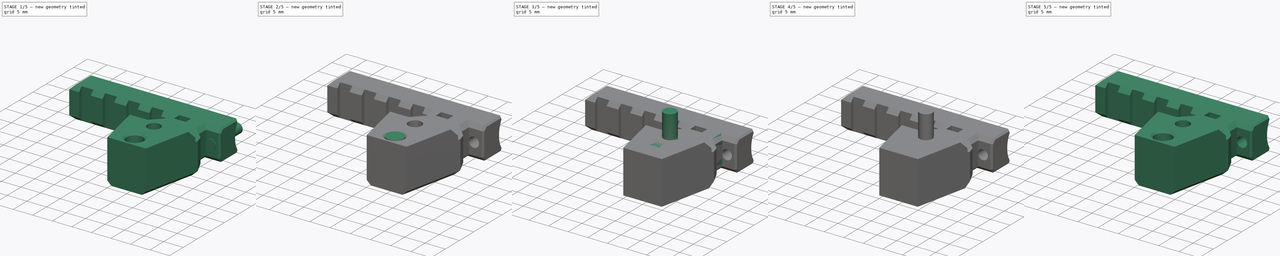
[diagram: build sequence overview — one tinted view per stage of 5, left to right]
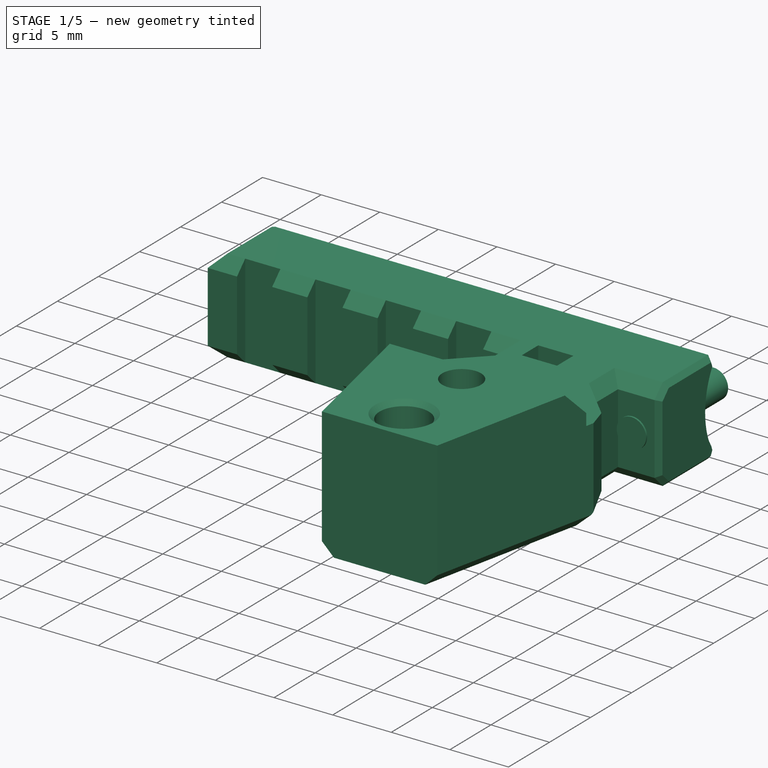
[diagram: stage 1 of 5 — iso view after this stage's code; geometry added in this stage tinted green]
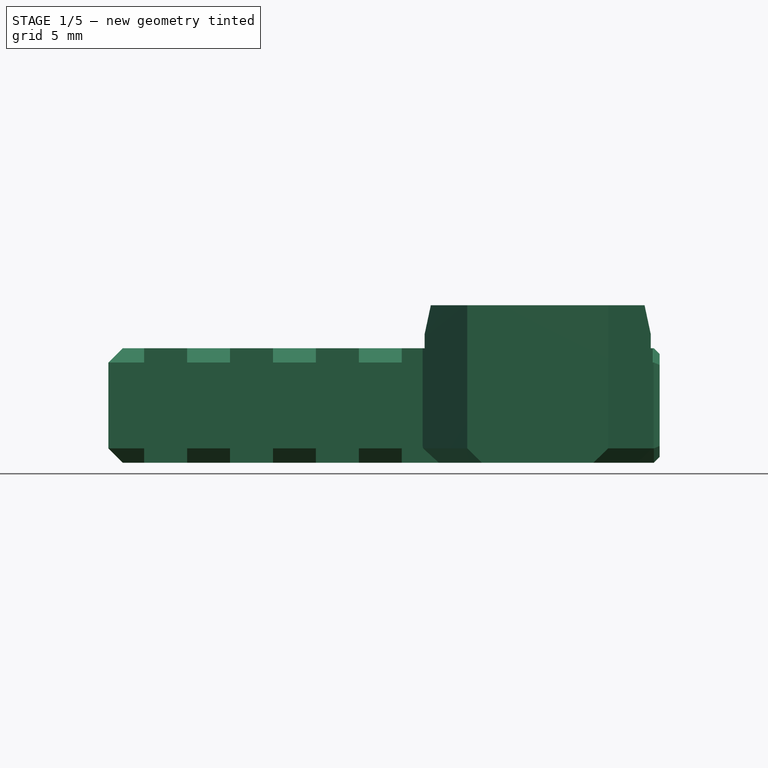
[diagram: stage 1 of 5 — front view after this stage's code; geometry added in this stage tinted green]
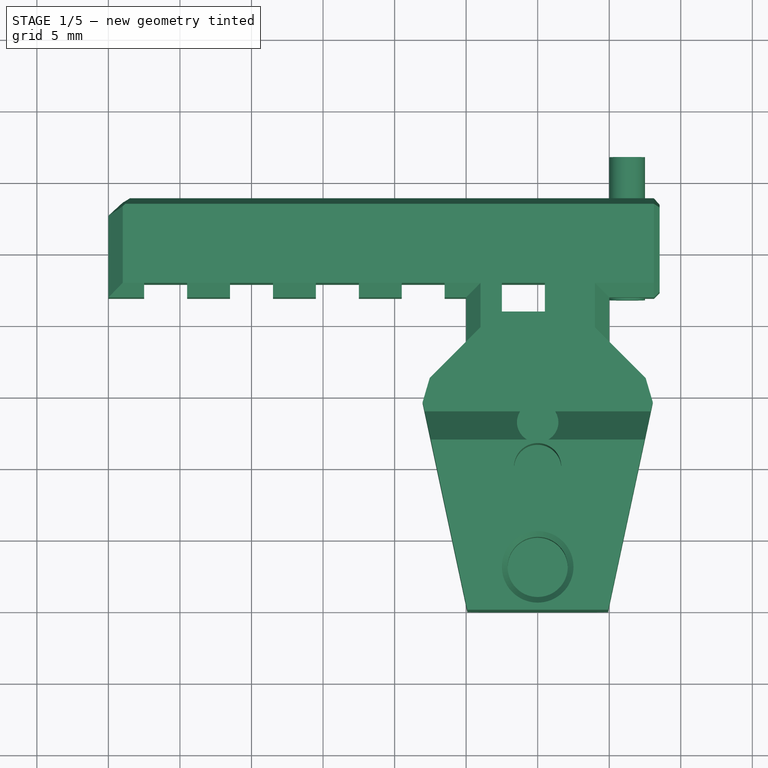
[diagram: stage 1 of 5 — top view after this stage's code; geometry added in this stage tinted green]
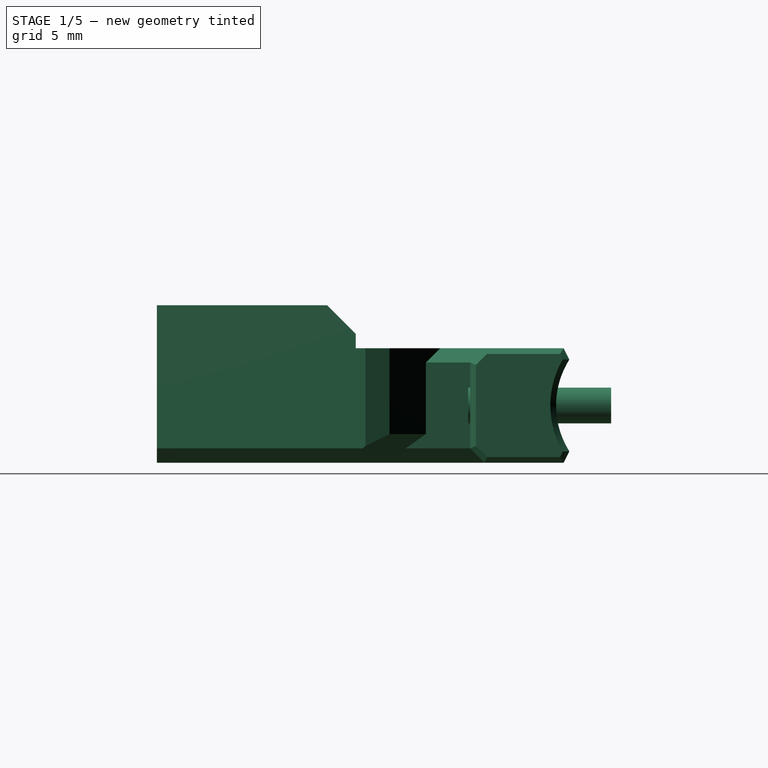
[diagram: stage 1 of 5 — right view after this stage's code; geometry added in this stage tinted green]
FCSTD DOCUMENT  (FreeCAD 0.19R24291 (Git))
Label: extruder-cable-guide
License: Other
LicenseURL: GPL3
objects: Part::Feature×8, PartDesign::Pad×8, Part::Cylinder×5, Part::Cut×5, Part::Chamfer×5, Sketcher::SketchObject×2, Part::Refine×2, PartDesign::FeatureBase×1, PartDesign::Body×1, Part::Extrusion×1, Part::MultiFuse×1
note: 47 computed .brp shape members not serialized (recipe doc carries the construction recipe); baked Part::Feature solids carry a one-line shape summary decoded from their .brp

FEATURE [Part::Feature] Chamfer001002002_cs
  Placement = pos=(26.5,0,0) rot=(0,0,1;0rad)
  shape: bbox 0.0002001 x 6.926 x 8 mm, 0 faces, 0 solids (baked)
FEATURE [Part::Feature] Defeatured002
  shape: bbox 38.38 x 29.43 x 11.83 mm, 76 faces (baked)
FEATURE [Part::Extrusion] Extrude
  Base = -> Chamfer001002002_cs
  Dir = (1,0,0)
  DirMode = 2
  FaceMakerClass = Part::FaceMakerBullseye
  LengthFwd = 5
  LengthRev = 0
  Solid = true
  Symmetric = false
FEATURE [Part::Cylinder] Cylinder003
  Angle = 360
  AttacherType = Attacher::AttachEngine3D
  Height = 10
  Placement = pos=(6.25,21.75,4) rot=(1,0,0;4.71239rad)
  Radius = 1.25
FEATURE [Part::Chamfer] Chamfer001002003
  Base = -> Extrude
  Edges = 8 edges r=0.4: [Edge4,Edge7,Edge10,Edge13,Edge16,Edge19,Edge22,Edge24]
FEATURE [Part::Feature] Defeatured003
  shape: bbox 38.38 x 29.43 x 11.83 mm, 74 faces (baked)
FEATURE [Part::Feature] Defeatured004
  shape: bbox 38.38 x 29.43 x 11.83 mm, 73 faces (baked)
FEATURE [Part::MultiFuse] Fusion
  Shapes = -> [Chamfer001002003,Defeatured004]
FEATURE [Part::Cylinder] Cylinder004
  Angle = 360
  AttacherType = Attacher::AttachEngine3D
  Height = 4
  Placement = pos=(0,10,0) rot=(0,0,1;0rad)
  Radius = 3.2
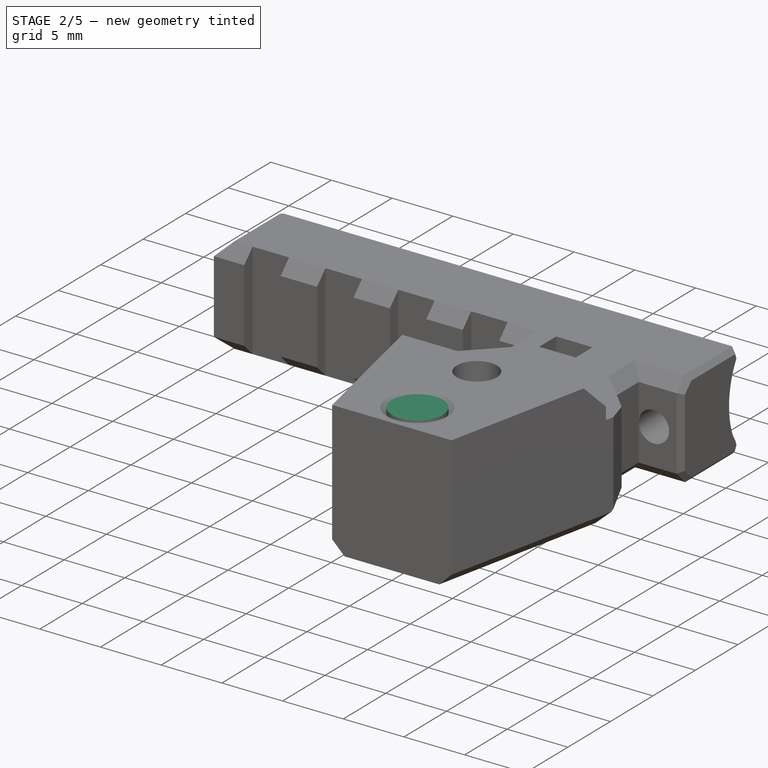
[diagram: stage 2 of 5 — iso view after this stage's code; geometry added in this stage tinted green]
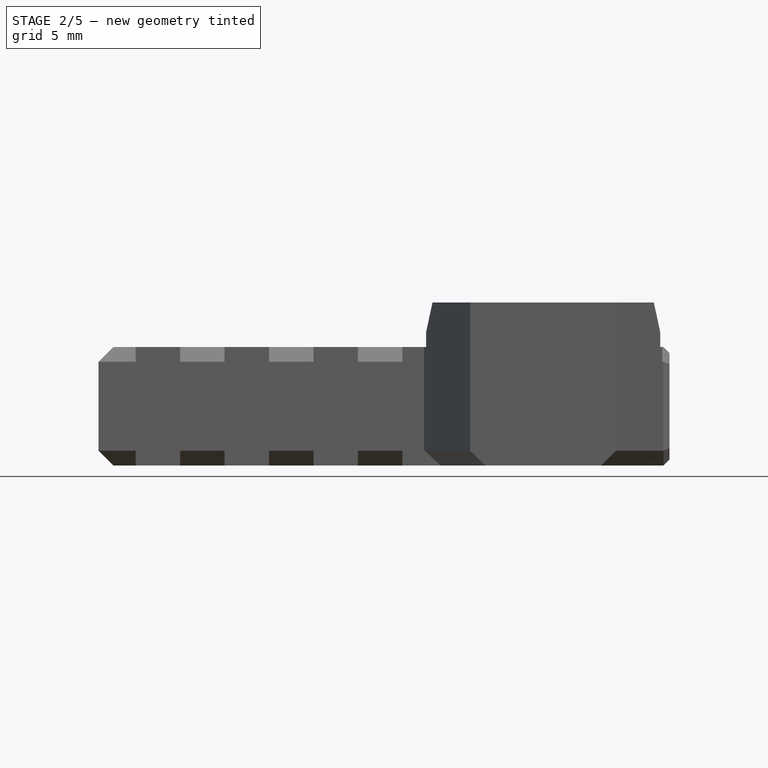
[diagram: stage 2 of 5 — front view after this stage's code; geometry added in this stage tinted green]
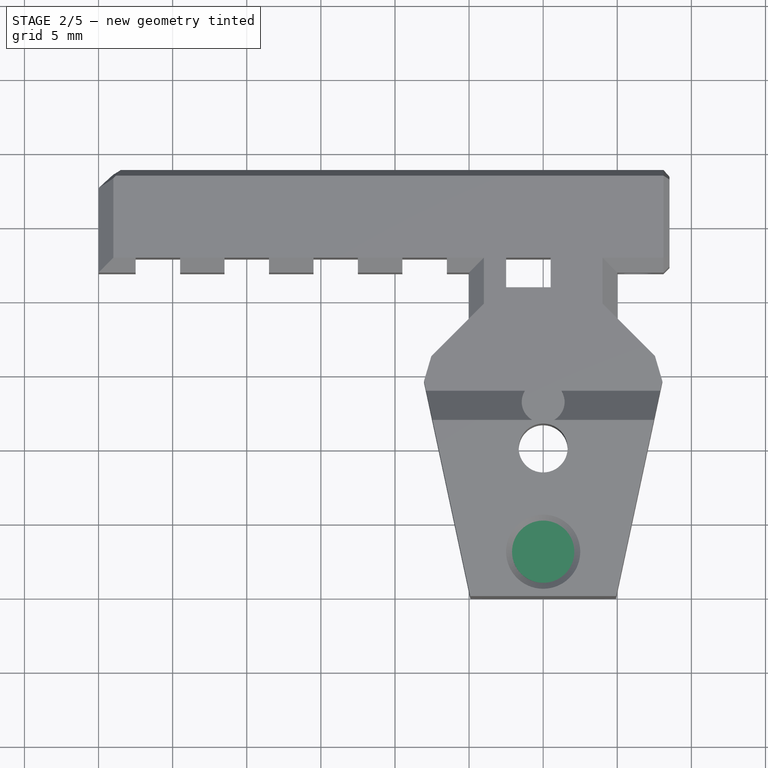
[diagram: stage 2 of 5 — top view after this stage's code; geometry added in this stage tinted green]
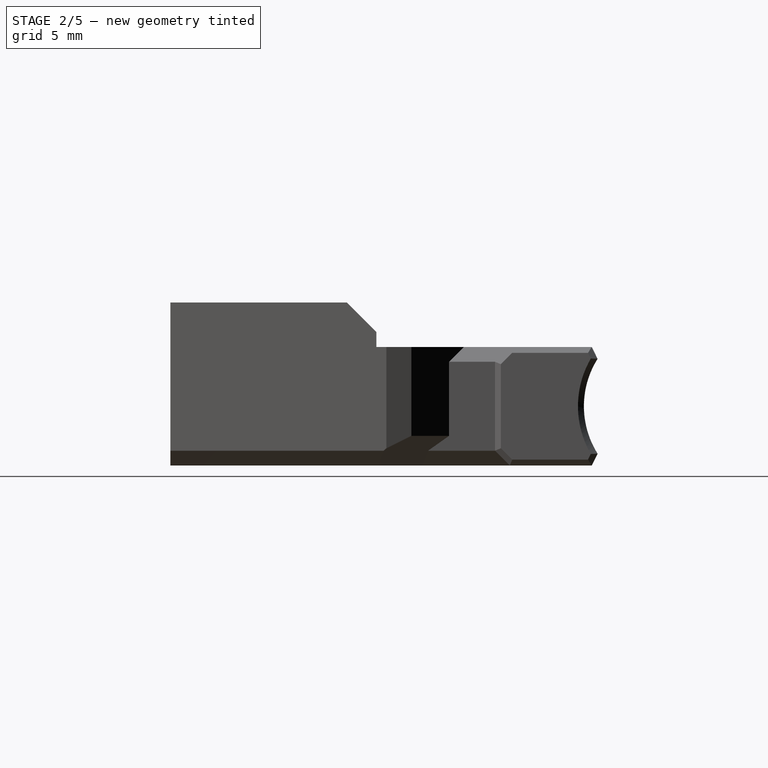
[diagram: stage 2 of 5 — right view after this stage's code; geometry added in this stage tinted green]
FEATURE [Part::Cylinder] Cylinder002
  Angle = 360
  AttacherType = Attacher::AttachEngine3D
  Height = 4
  Placement = pos=(0,3,7) rot=(0,0,1;0rad)
  Radius = 2.1
FEATURE [Part::Refine] Fusion001
  Source = -> Fusion
FEATURE [Part::Cut] Cut002003002
  Base = -> Fusion001
  Tool = -> Cylinder003
FEATURE [Part::Chamfer] Chamfer001002005
  Base = -> Cut002003002
  Edges = 2 edges r=0.4: [Edge193,Edge194]
FEATURE [Part::Cut] Cut002003003
  Base = -> Chamfer001002005
  Tool = -> Cylinder004
FEATURE [Part::Chamfer] Chamfer001002006
  Base = -> Cut002003003
  Edges = 1 edges r=0.4: [Edge94]
FEATURE [Part::Feature] Chamfer001002006002  label="extruder-cable-support001"
  shape: bbox 38.86 x 29.43 x 11.83 mm, 90 faces (baked)
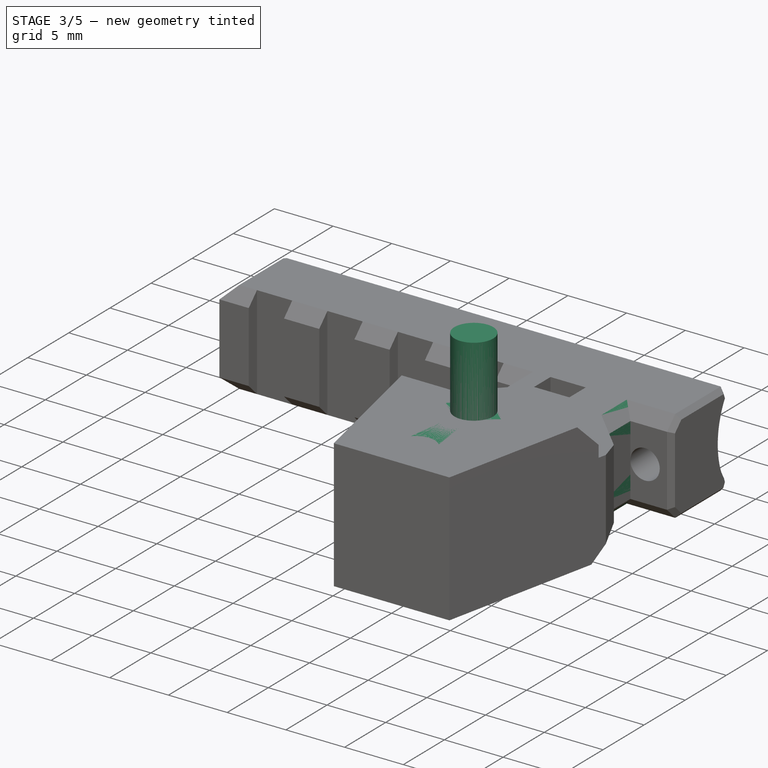
[diagram: stage 3 of 5 — iso view after this stage's code; geometry added in this stage tinted green]
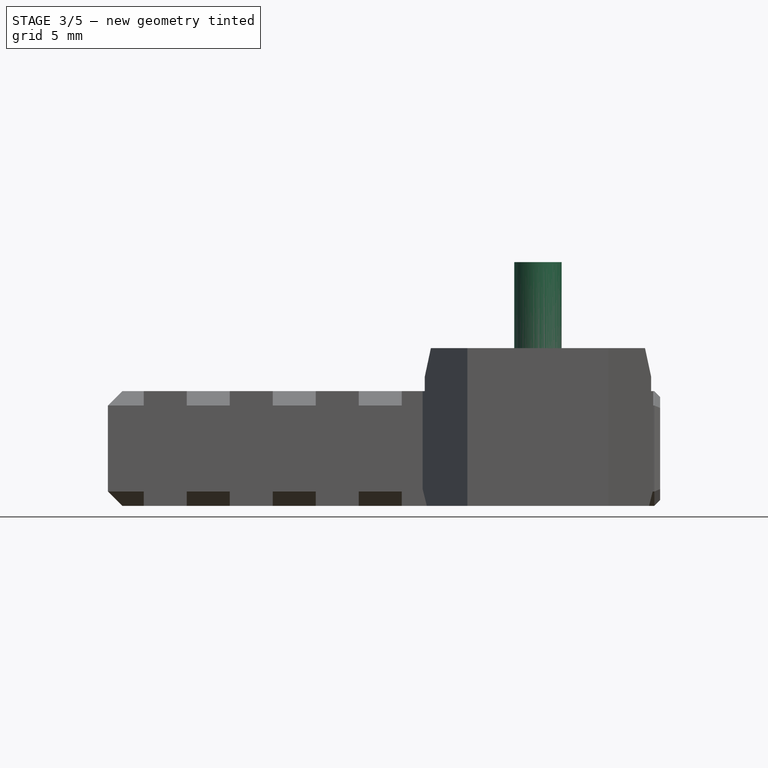
[diagram: stage 3 of 5 — front view after this stage's code; geometry added in this stage tinted green]
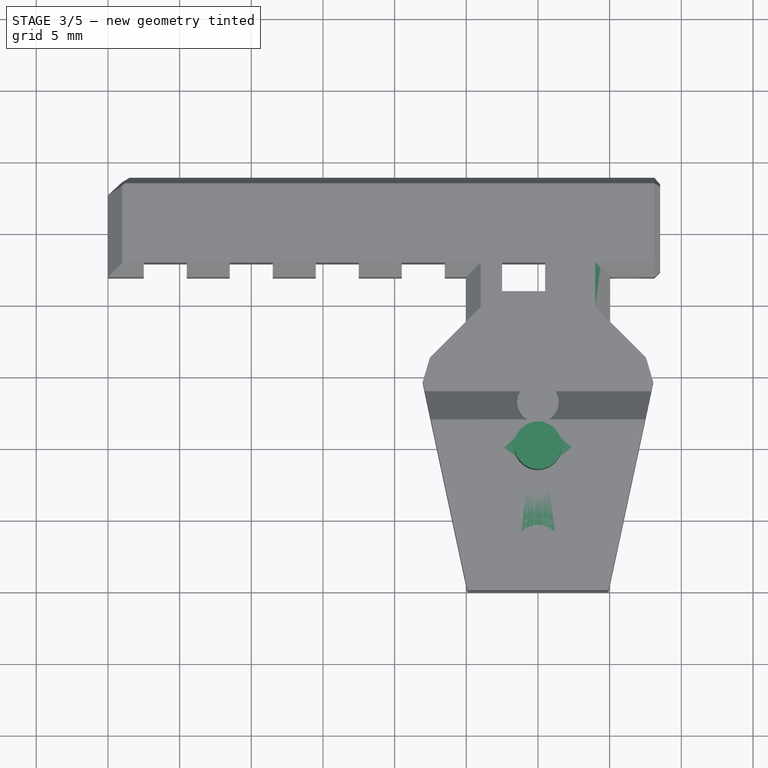
[diagram: stage 3 of 5 — top view after this stage's code; geometry added in this stage tinted green]
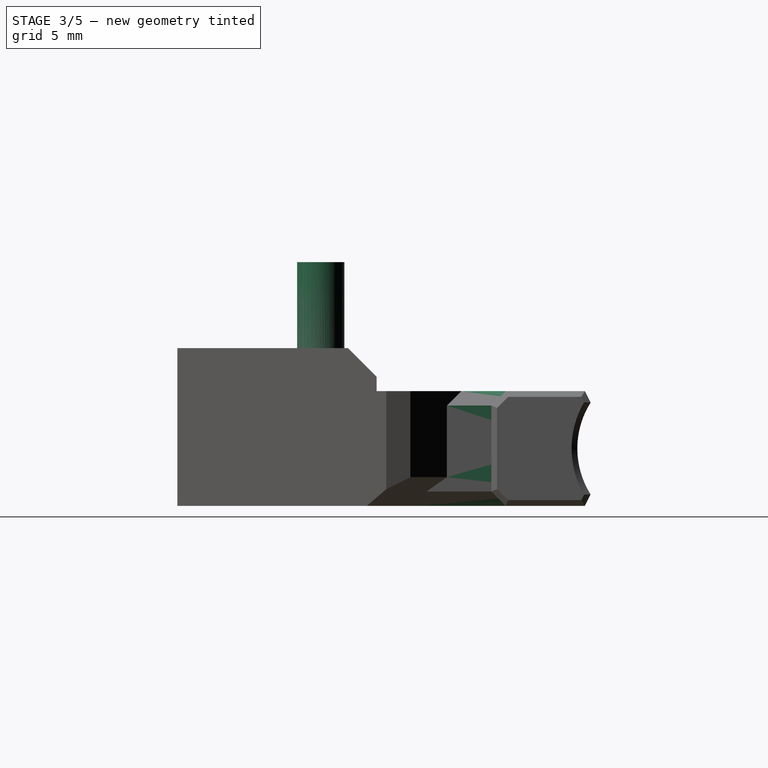
[diagram: stage 3 of 5 — right view after this stage's code; geometry added in this stage tinted green]
FEATURE [Part::Feature] Chamfer001002001  label="extruder-cable-support"
  Placement = pos=(0,0,6e-15) rot=(0,0,1;0rad)
  shape: bbox 38.38 x 29.43 x 11.83 mm, 84 faces (baked)
FEATURE [Part::Feature] Defeatured
  shape: bbox 38.38 x 29.43 x 11.83 mm, 83 faces (baked)
FEATURE [Part::Feature] Defeatured001  label="origin-no-chamfer"
  shape: bbox 38.38 x 29.43 x 11.83 mm, 82 faces (baked)
FEATURE [PartDesign::FeatureBase] BaseFeature
  BaseFeature = -> Defeatured001
FEATURE [PartDesign::Pad] Pad
  BaseFeature = -> BaseFeature
  Direction = (1,1,1)
  Length = 4
  Length2 = 100
  Profile = -> BaseFeature [Face74]
  Type = 0
FEATURE [PartDesign::Pad] Pad001
  BaseFeature = -> Pad
  Direction = (1,1,1)
  Length = 4
  Length2 = 100
  Profile = -> Pad [Face60]
  Type = 0
FEATURE [PartDesign::Pad] Pad002
  BaseFeature = -> Pad001
  Direction = (1,1,1)
  Length = 4
  Length2 = 100
  Profile = -> Pad001 [Face60]
  Type = 0
FEATURE [PartDesign::Body] Body
  BaseFeature = -> Defeatured001
  Group = -> [BaseFeature,Pad,Pad001,Pad002,Sketch,Pad003,Sketch001,Pad004,Pad005,Pad006,Pad007]
  Origin = -> Origin
  Tip = -> Pad007
FEATURE [Part::Cylinder] Cylinder
  Angle = 360
  AttacherType = Attacher::AttachEngine3D
  Height = 3
  Placement = pos=(0,10,0) rot=(0,0,1;0rad)
  Radius = 3.2
FEATURE [Part::Cylinder] Cylinder001
  Angle = 360
  AttacherType = Attacher::AttachEngine3D
  Height = 17
  Placement = pos=(0,10,0) rot=(0,0,1;0rad)
  Radius = 1.65
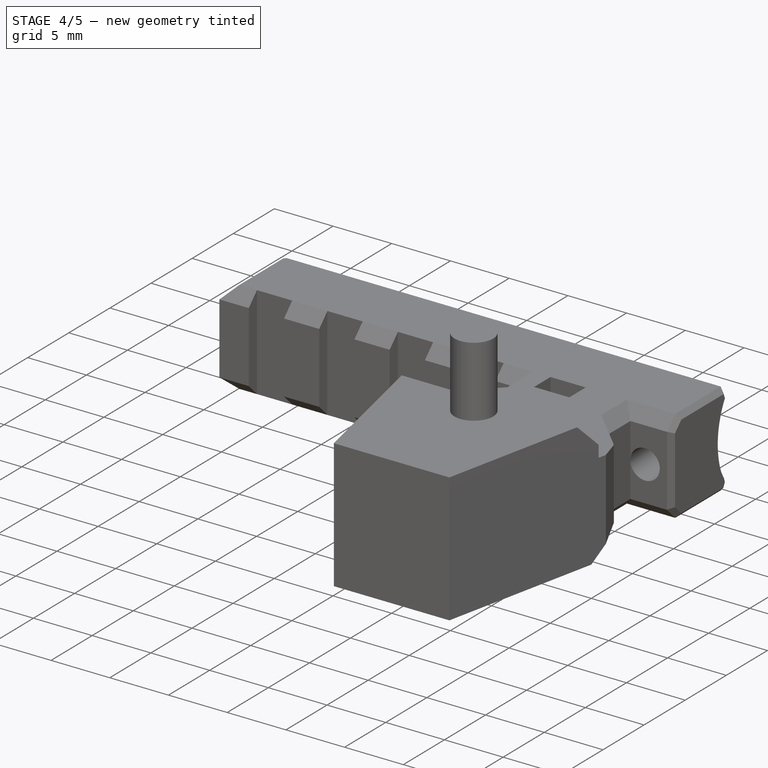
[diagram: stage 4 of 5 — iso view after this stage's code; geometry added in this stage tinted green]
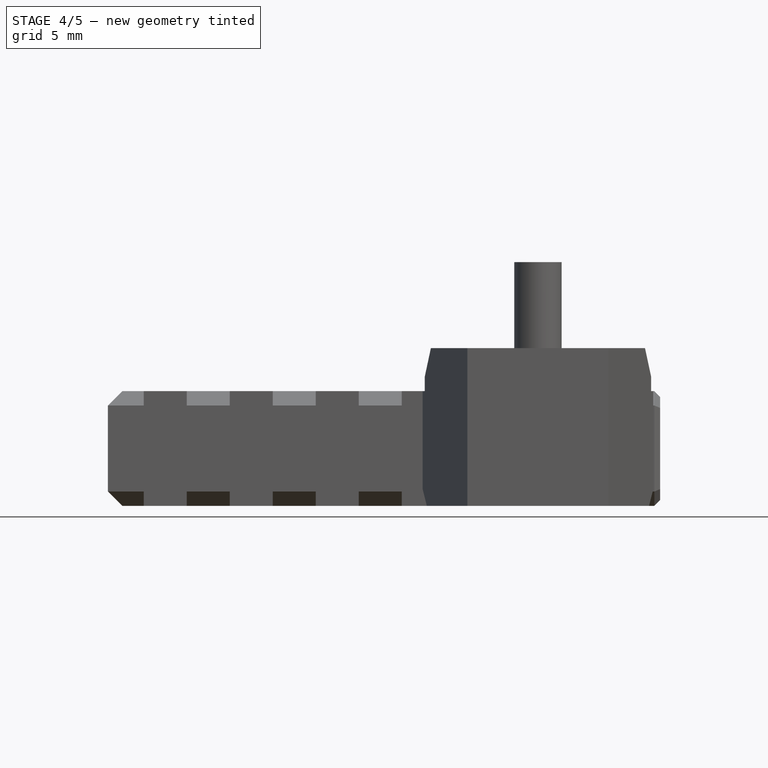
[diagram: stage 4 of 5 — front view after this stage's code; geometry added in this stage tinted green]
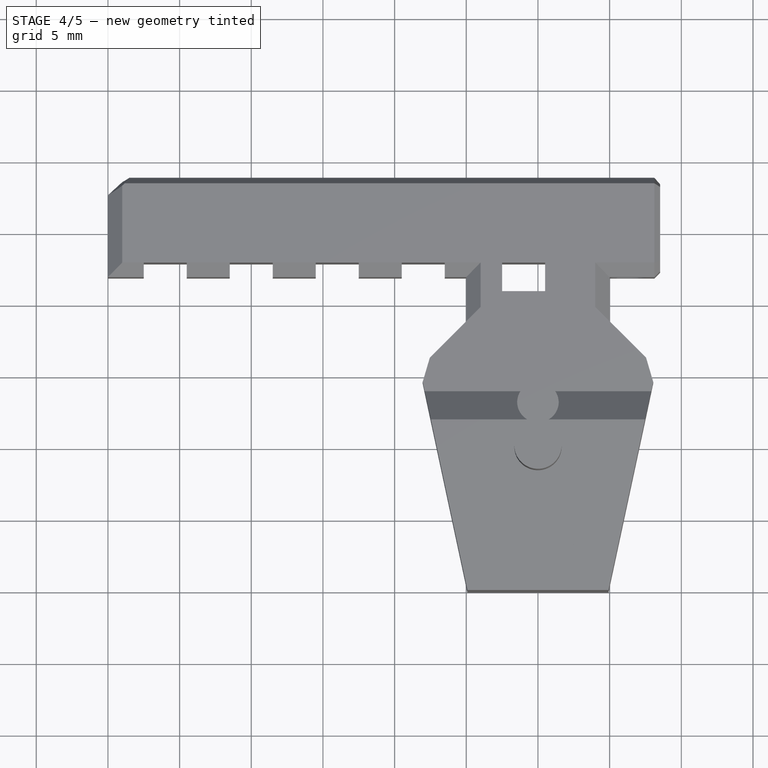
[diagram: stage 4 of 5 — top view after this stage's code; geometry added in this stage tinted green]
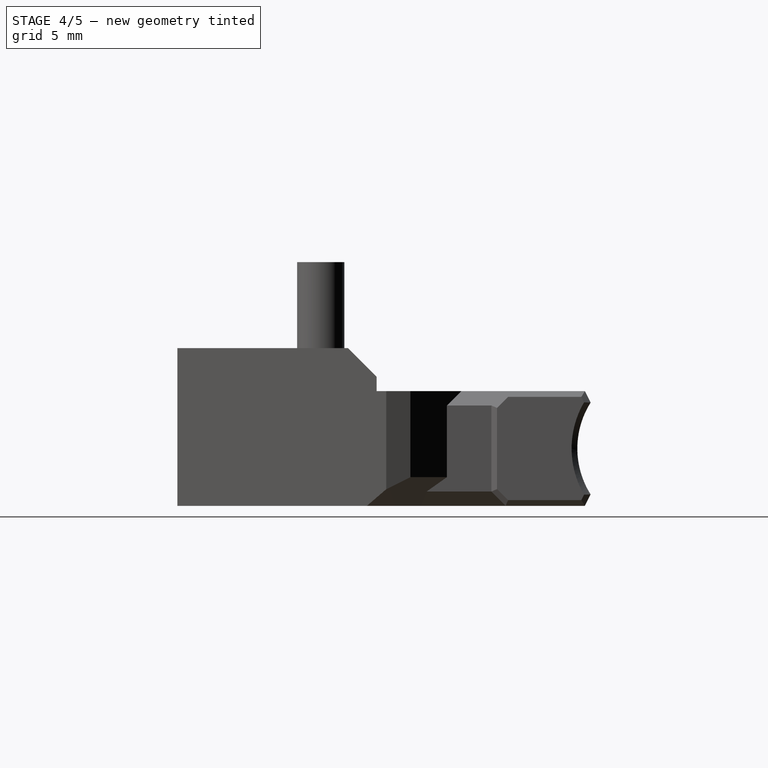
[diagram: stage 4 of 5 — right view after this stage's code; geometry added in this stage tinted green]
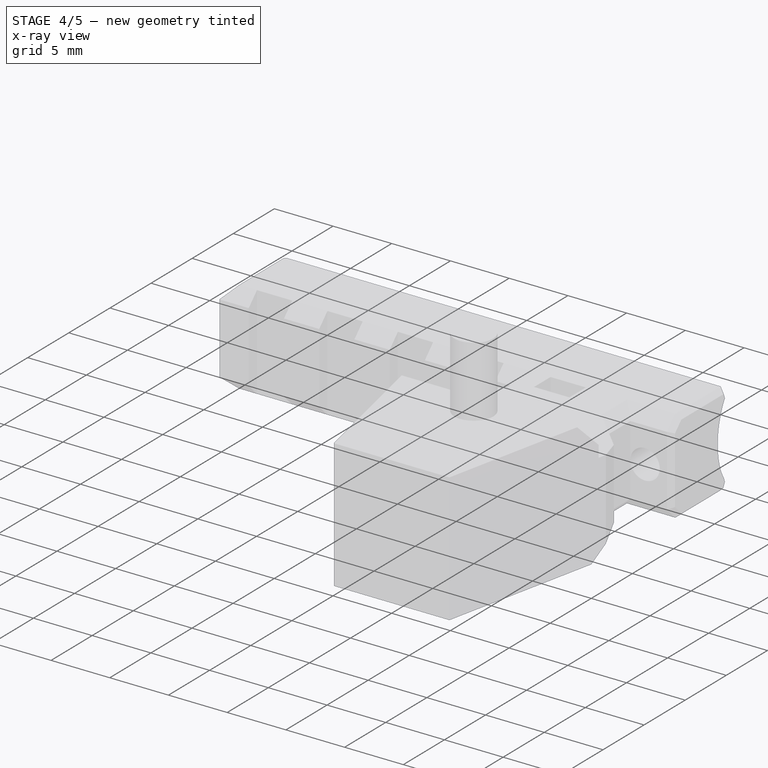
[diagram: stage 4 of 5 — x-ray composite at the iso view; earlier geometry ghosted, this stage's added geometry solid]
FEATURE [Sketcher::SketchObject] Sketch
  FullyConstrained = false
  MapMode = 5
  Placement = pos=(0,4.9e-15,11) rot=(0,0,1;0rad)
  Support = -> [Pad002]
  sketch-geometry (1):
    g0: Circle CenterX=0 CenterY=7.5 CenterZ=0 NormalX=0 NormalY=0 NormalZ=1 AngleXU=0 Radius=1.94962
  constraints (1):
    c: PointOnObject(g0,g-2)
FEATURE [PartDesign::Pad] Pad003
  BaseFeature = -> Pad002
  Direction = (1,1,1)
  Length = 10
  Length2 = 100
  Profile = -> Sketch
  Type = 3
  UpToFace = -> Pad002 [Face30]
FEATURE [Sketcher::SketchObject] Sketch001
  FullyConstrained = false
  MapMode = 5
  Placement = pos=(0,0,2.12e-14) rot=(1,0,0;3.14159rad)
  Support = -> [Pad003]
  sketch-geometry (1):
    g0: Circle CenterX=0 CenterY=-13.2467 CenterZ=0 NormalX=0 NormalY=0 NormalZ=1 AngleXU=0 Radius=2.48137
  constraints (1):
    c: PointOnObject(g0,g-2)
FEATURE [PartDesign::Pad] Pad004
  BaseFeature = -> Pad003
  Direction = (1,1,1)
  Length = 10
  Length2 = 100
  Profile = -> Sketch001
  Type = 3
  UpToFace = -> Pad003 [Face44]
FEATURE [PartDesign::Pad] Pad005
  BaseFeature = -> Pad004
  Direction = (1,1,1)
  Length = 6.8
  Length2 = 100
  Profile = -> Pad004 [Face89]
  Type = 0
FEATURE [PartDesign::Pad] Pad006
  BaseFeature = -> Pad005
  Direction = (1,1,1)
  Length = 6.8
  Length2 = 100
  Profile = -> Pad005 [Face90]
  Type = 0
FEATURE [PartDesign::Pad] Pad007
  BaseFeature = -> Pad006
  Direction = (1,1,1)
  Length = 6.8
  Length2 = 100
  Profile = -> Pad006 [Face88]
  Type = 0
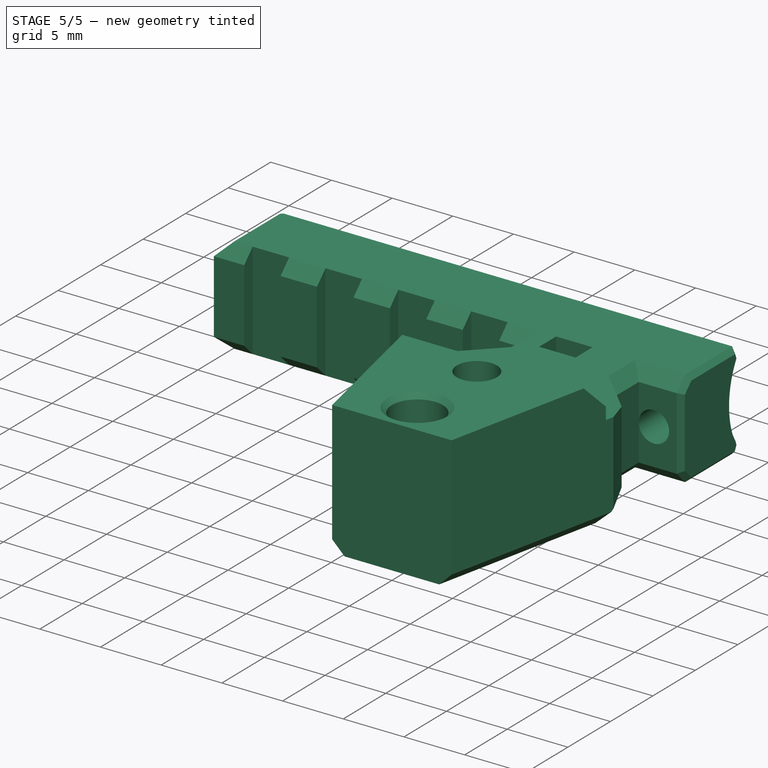
[diagram: stage 5 of 5 — iso view after this stage's code; geometry added in this stage tinted green]
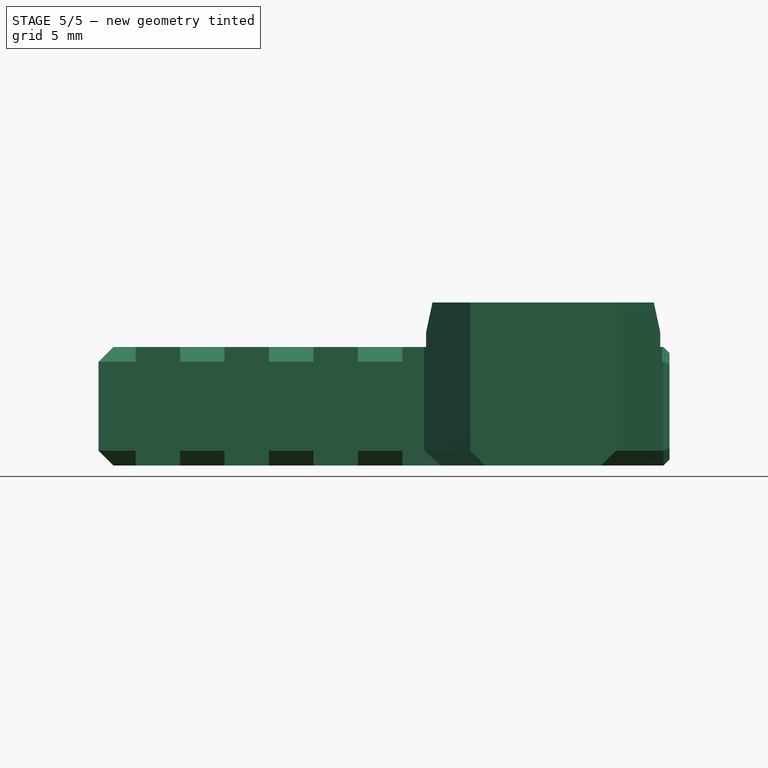
[diagram: stage 5 of 5 — front view after this stage's code; geometry added in this stage tinted green]
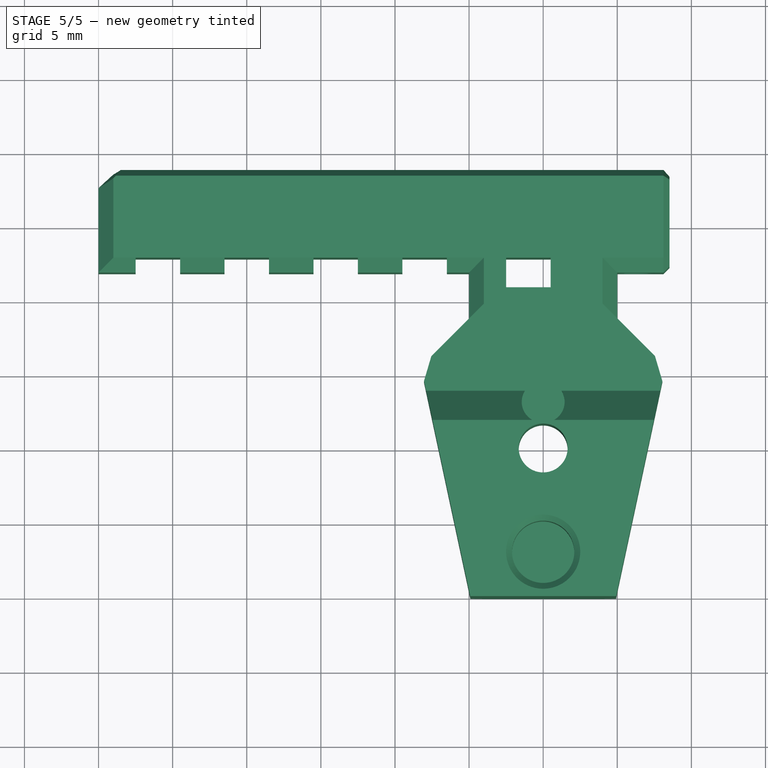
[diagram: stage 5 of 5 — top view after this stage's code; geometry added in this stage tinted green]
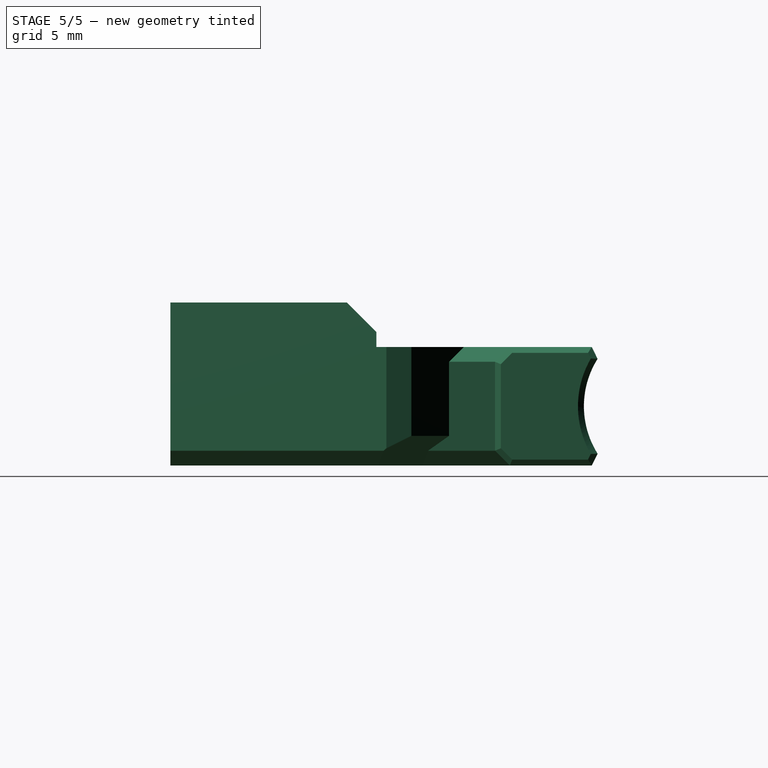
[diagram: stage 5 of 5 — right view after this stage's code; geometry added in this stage tinted green]
FEATURE [Part::Cut] Cut
  Base = -> Body
  Tool = -> Cylinder
FEATURE [Part::Cut] Cut001
  Base = -> Cut
  Tool = -> Cylinder001
FEATURE [Part::Cut] Cut002003
  Base = -> Cut001
  Tool = -> Cylinder002
FEATURE [Part::Refine] Cut002003001
  Source = -> Cut002003
FEATURE [Part::Chamfer] Chamfer
  Base = -> Cut002003001
  Edges = 1 edges r=0.4: [Edge200]
FEATURE [Part::Chamfer] Chamfer001002004
  Base = -> Chamfer
  Edges = 2 edges r=1: [Edge21,Edge30]
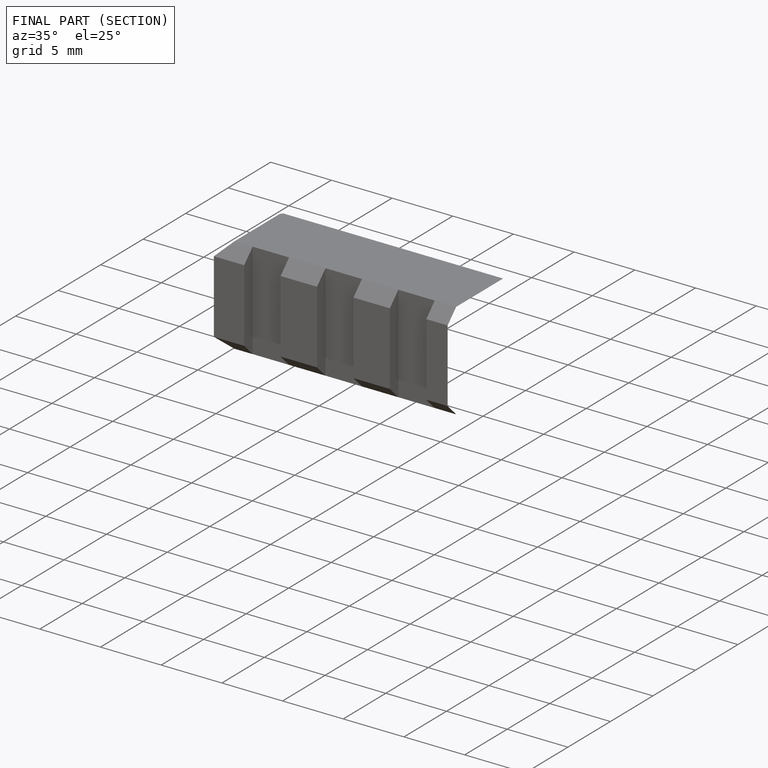
[diagram: finished part — half-section view (interior)]
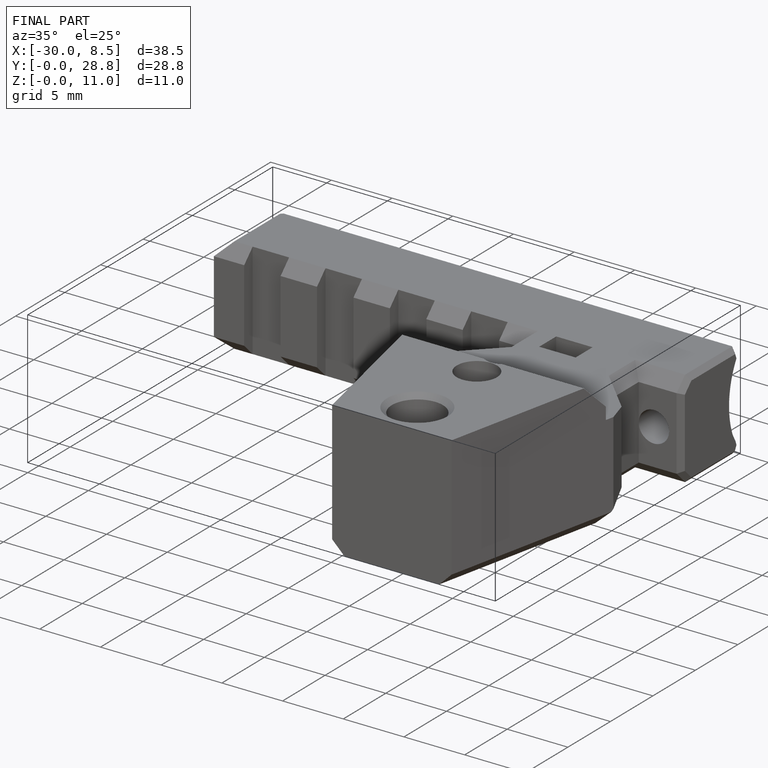
[diagram: finished part — iso view with bounding-box wireframe]
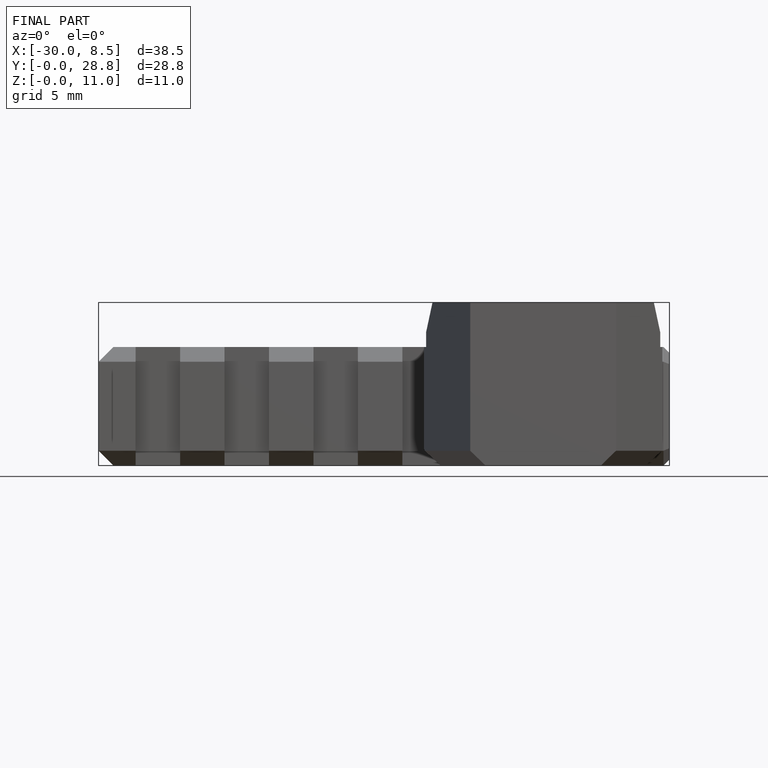
[diagram: finished part — front view with bounding-box wireframe]
